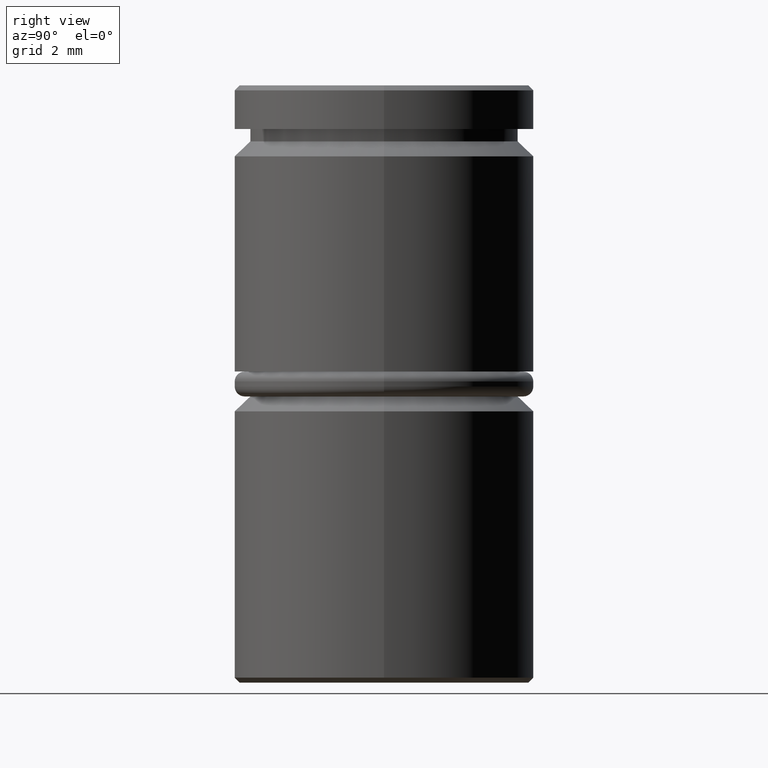
[diagram: clean part render]
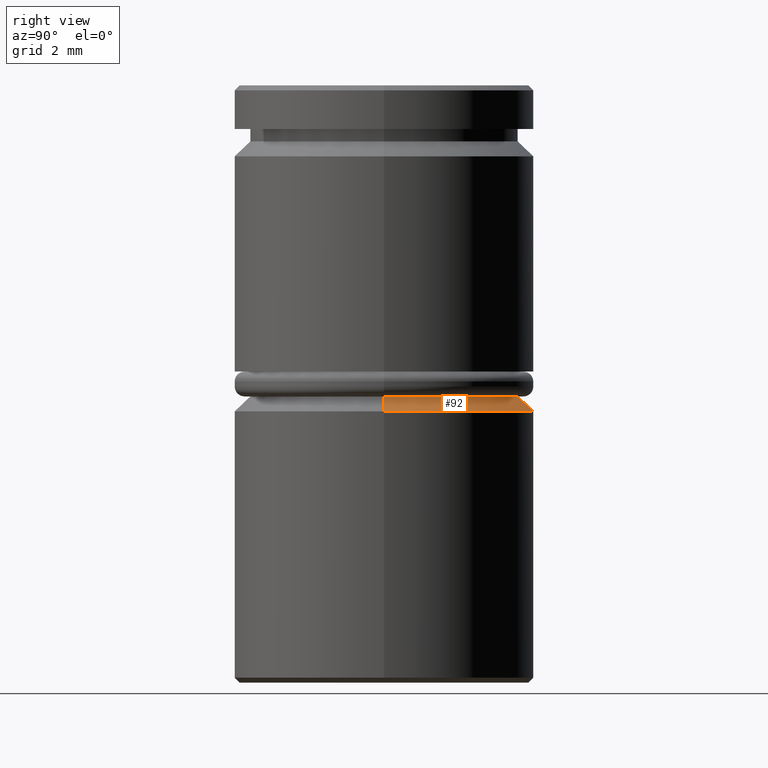
[diagram: same view with one face highlighted and labeled with its STEP entity id]
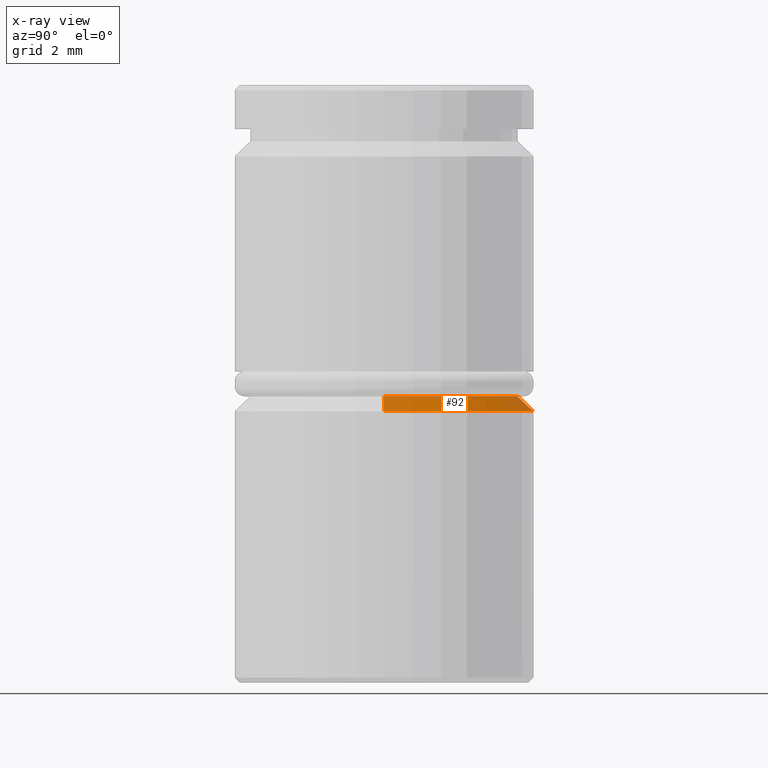
[diagram: x-ray of the same camera — body ghosted, the highlighted face saturated]
A machine part, right view. The second image highlights one B-rep face of the part: STEP entity #92.
The next image is the same camera in x-ray: the body ghosted, the highlighted face saturated — about 0% of this face is hidden behind the body in this view.
In plain terms, the highlighted conical surface has half-angle 45 deg.
Its self-contained STEP definition (entity closure, byte-faithful):
#33 = DIRECTION ( 'NONE',  ( -0.000000000000000000, -0.000000000000000000, 1.000000000000000000 ) ) ;
#36 = EDGE_LOOP ( 'NONE', ( #867, #326, #475, #438 ) ) ;
#44 = AXIS2_PLACEMENT_3D ( 'NONE', #394, #1136, #1126 ) ;
#92 = ADVANCED_FACE ( 'NONE', ( #531 ), #920, .T. ) ;
#165 = DIRECTION ( 'NONE',  ( 0.000000000000000000, 0.000000000000000000, -1.000000000000000000 ) ) ;
#190 = LINE ( 'NONE', #1114, #1082 ) ;
#223 = EDGE_CURVE ( 'NONE', #660, #412, #865, .T. ) ;
#231 = CARTESIAN_POINT ( 'NONE',  ( 2.700000000000000178, 0.000000000000000000, -6.250000000000000000 ) ) ;
#250 = CARTESIAN_POINT ( 'NONE',  ( -2.700000000000005063, 0.000000000000000000, -6.250000000000000000 ) ) ;
#273 = CARTESIAN_POINT ( 'NONE',  ( 0.000000000000000000, 0.000000000000000000, -6.250000000000000000 ) ) ;
#326 = ORIENTED_EDGE ( 'NONE', *, *, #527, .T. ) ;
#394 = CARTESIAN_POINT ( 'NONE',  ( 0.000000000000000000, 0.000000000000000000, -6.549999999999997158 ) ) ;
#407 = DIRECTION ( 'NONE',  ( 1.000000000000000000, 0.000000000000000000, 0.000000000000000000 ) ) ;
#412 = VERTEX_POINT ( 'NONE', #450 ) ;
#438 = ORIENTED_EDGE ( 'NONE', *, *, #778, .F. ) ;
#440 = DIRECTION ( 'NONE',  ( -1.000000000000000000, 0.000000000000000000, 0.000000000000000000 ) ) ;
#450 = CARTESIAN_POINT ( 'NONE',  ( 3.000000000000000000, 0.000000000000000000, -6.549999999999997158 ) ) ;
#475 = ORIENTED_EDGE ( 'NONE', *, *, #223, .F. ) ;
#527 = EDGE_CURVE ( 'NONE', #1135, #412, #190, .T. ) ;
#531 = FACE_OUTER_BOUND ( 'NONE', #36, .T. ) ;
#633 = CARTESIAN_POINT ( 'NONE',  ( -3.000000000000000000, 3.673940397442059868E-16, -6.549999999999997158 ) ) ;
#660 = VERTEX_POINT ( 'NONE', #633 ) ;
#697 = VECTOR ( 'NONE', #1162, 1000.000000000000114 ) ;
#726 = CIRCLE ( 'NONE', #1074, 2.700000000000000178 ) ;
#778 = EDGE_CURVE ( 'NONE', #1038, #660, #1067, .T. ) ;
#785 = CARTESIAN_POINT ( 'NONE',  ( -2.700000000000000178, 3.306546357697853733E-16, -6.250000000000000000 ) ) ;
#858 = CARTESIAN_POINT ( 'NONE',  ( 0.000000000000000000, 0.000000000000000000, -6.250000000000000000 ) ) ;
#865 = CIRCLE ( 'NONE', #44, 3.000000000000000000 ) ;
#867 = ORIENTED_EDGE ( 'NONE', *, *, #1081, .F. ) ;
#920 = CONICAL_SURFACE ( 'NONE', #1076, 2.700000000000005063, 0.7853981633974460586 ) ;
#1038 = VERTEX_POINT ( 'NONE', #785 ) ;
#1067 = LINE ( 'NONE', #250, #697 ) ;
#1074 = AXIS2_PLACEMENT_3D ( 'NONE', #858, #33, #407 ) ;
#1076 = AXIS2_PLACEMENT_3D ( 'NONE', #273, #165, #440 ) ;
#1081 = EDGE_CURVE ( 'NONE', #1135, #1038, #726, .T. ) ;
#1082 = VECTOR ( 'NONE', #1106, 1000.000000000000114 ) ;
#1106 = DIRECTION ( 'NONE',  ( 0.7071067811865460184, 8.659560562354913137E-17, -0.7071067811865490160 ) ) ;
#1114 = CARTESIAN_POINT ( 'NONE',  ( 2.700000000000005063, 3.306546357697859650E-16, -6.250000000000000000 ) ) ;
#1126 = DIRECTION ( 'NONE',  ( 1.000000000000000000, 0.000000000000000000, 0.000000000000000000 ) ) ;
#1135 = VERTEX_POINT ( 'NONE', #231 ) ;
#1136 = DIRECTION ( 'NONE',  ( 0.000000000000000000, 0.000000000000000000, -1.000000000000000000 ) ) ;
#1162 = DIRECTION ( 'NONE',  ( -0.7071067811865460184, 0.000000000000000000, -0.7071067811865490160 ) ) ;